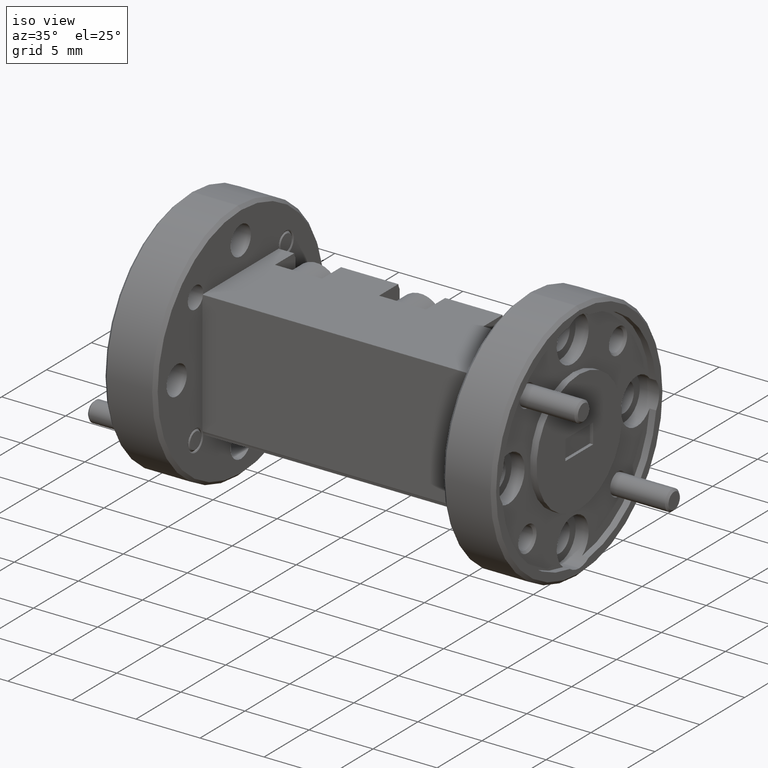
[diagram: clean part render]
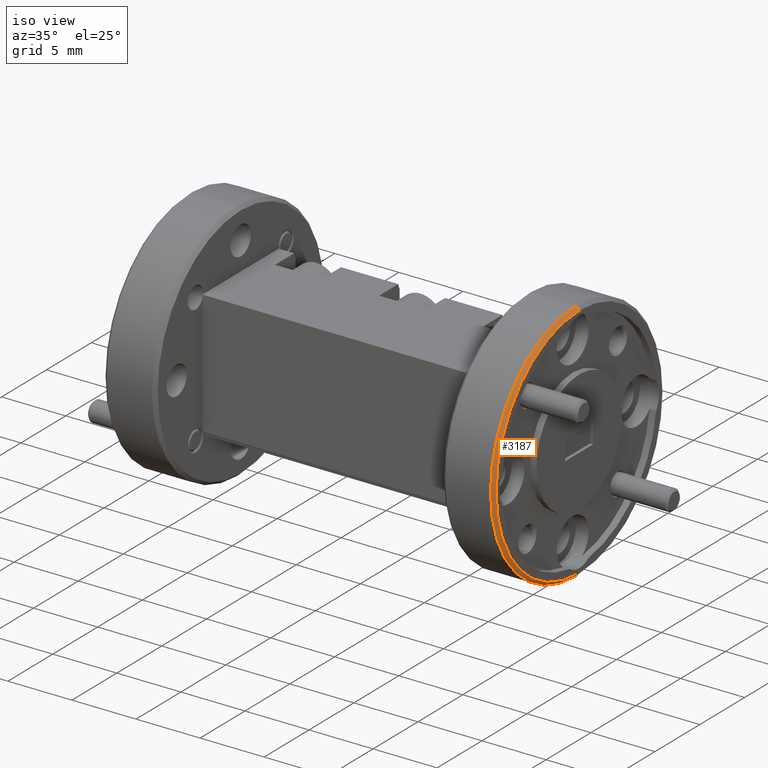
[diagram: same view with one face highlighted and labeled with its STEP entity id]
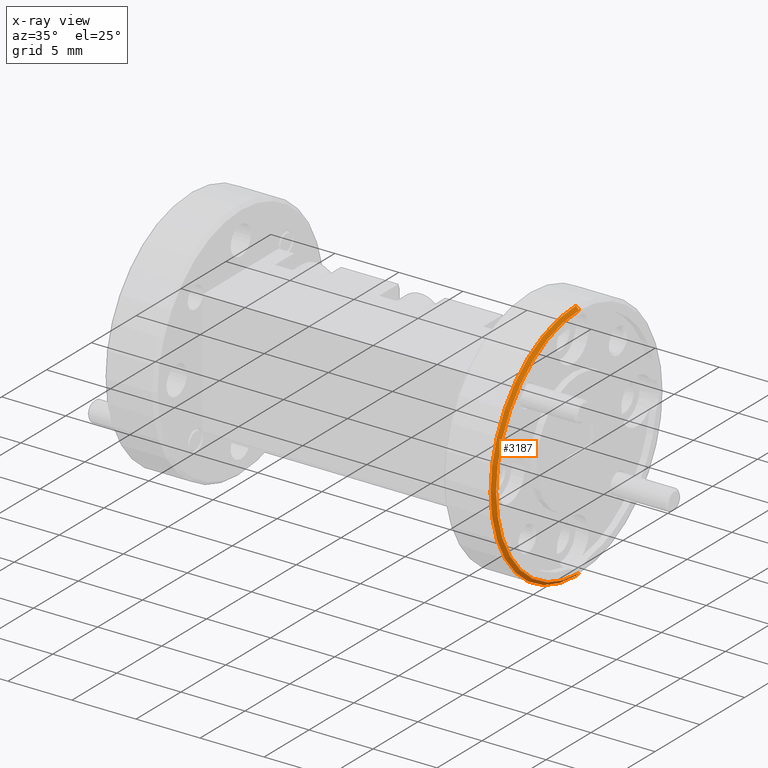
[diagram: x-ray of the same camera — body ghosted, the highlighted face saturated]
A machine part, iso view. The second image highlights one B-rep face of the part: STEP entity #3187.
The next image is the same camera in x-ray: the body ghosted, the highlighted face saturated — about 0% of this face is hidden behind the body in this view.
In plain terms, the highlighted conical surface has half-angle 45 deg.
Its self-contained STEP definition (entity closure, byte-faithful):
#164 = ORIENTED_EDGE ( 'NONE', *, *, #833, .T. ) ;
#495 = EDGE_LOOP ( 'NONE', ( #2180, #164, #534, #8403 ) ) ;
#534 = ORIENTED_EDGE ( 'NONE', *, *, #4889, .F. ) ;
#604 = LINE ( 'NONE', #9907, #5432 ) ;
#833 = EDGE_CURVE ( 'NONE', #844, #7906, #604, .T. ) ;
#844 = VERTEX_POINT ( 'NONE', #9098 ) ;
#1482 = CIRCLE ( 'NONE', #7418, 0.3749999999999999445 ) ;
#1965 = CARTESIAN_POINT ( 'NONE',  ( 1.052451282502860019, 0.6950558021064788816, 0.8719535146820031057 ) ) ;
#2034 = EDGE_CURVE ( 'NONE', #10984, #10864, #2530, .T. ) ;
#2180 = ORIENTED_EDGE ( 'NONE', *, *, #3022, .F. ) ;
#2530 = LINE ( 'NONE', #9032, #11168 ) ;
#2911 = CARTESIAN_POINT ( 'NONE',  ( 1.042451282502860455, 0.6950558021064788816, 0.4969535146820032723 ) ) ;
#3022 = EDGE_CURVE ( 'NONE', #844, #10984, #7691, .T. ) ;
#3187 = ADVANCED_FACE ( 'NONE', ( #8670 ), #4057, .T. ) ;
#4057 = CONICAL_SURFACE ( 'NONE', #4258, 0.3749999999999999445, 0.7853981633974447263 ) ;
#4210 = CARTESIAN_POINT ( 'NONE',  ( 1.052451282502860019, 0.6950558021064788816, 0.5069535146820026705 ) ) ;
#4258 = AXIS2_PLACEMENT_3D ( 'NONE', #9994, #11922, #5233 ) ;
#4391 = DIRECTION ( 'NONE',  ( -0.7071067811865499042, -1.200316422774041849E-16, 0.7071067811865450192 ) ) ;
#4889 = EDGE_CURVE ( 'NONE', #10864, #7906, #1482, .T. ) ;
#5233 = DIRECTION ( 'NONE',  ( 0.000000000000000000, 0.000000000000000000, -1.000000000000000000 ) ) ;
#5432 = VECTOR ( 'NONE', #4391, 39.37007874015748854 ) ;
#5770 = DIRECTION ( 'NONE',  ( 0.000000000000000000, 0.000000000000000000, -1.000000000000000000 ) ) ;
#6255 = DIRECTION ( 'NONE',  ( -0.7071067811865499042, 3.470014170709585679E-17, -0.7071067811865450192 ) ) ;
#6487 = DIRECTION ( 'NONE',  ( 1.000000000000000000, -2.757206031840760911E-17, -5.551115123125781470E-17 ) ) ;
#6535 = DIRECTION ( 'NONE',  ( 0.000000000000000000, 0.000000000000000000, -1.000000000000000000 ) ) ;
#7418 = AXIS2_PLACEMENT_3D ( 'NONE', #7462, #9367, #6535 ) ;
#7462 = CARTESIAN_POINT ( 'NONE',  ( 1.042451282502860455, 0.6950558021064788816, 0.8719535146820031057 ) ) ;
#7691 = CIRCLE ( 'NONE', #10223, 0.3650000000000005462 ) ;
#7906 = VERTEX_POINT ( 'NONE', #11484 ) ;
#8403 = ORIENTED_EDGE ( 'NONE', *, *, #2034, .F. ) ;
#8670 = FACE_OUTER_BOUND ( 'NONE', #495, .T. ) ;
#9032 = CARTESIAN_POINT ( 'NONE',  ( 1.042451282502860455, 0.6950558021064788816, 0.4969535146820031613 ) ) ;
#9098 = CARTESIAN_POINT ( 'NONE',  ( 1.052451282502860019, 0.6950558021064788816, 1.236953514682003430 ) ) ;
#9367 = DIRECTION ( 'NONE',  ( -1.000000000000000000, 8.938572552786690926E-19, -1.232595164407830672E-32 ) ) ;
#9907 = CARTESIAN_POINT ( 'NONE',  ( 1.042451282502860455, 0.6950558021064788816, 1.246953514682002995 ) ) ;
#9994 = CARTESIAN_POINT ( 'NONE',  ( 1.042451282502860455, 0.6950558021064788816, 0.8719535146820031057 ) ) ;
#10223 = AXIS2_PLACEMENT_3D ( 'NONE', #1965, #6487, #5770 ) ;
#10864 = VERTEX_POINT ( 'NONE', #2911 ) ;
#10984 = VERTEX_POINT ( 'NONE', #4210 ) ;
#11168 = VECTOR ( 'NONE', #6255, 39.37007874015748854 ) ;
#11484 = CARTESIAN_POINT ( 'NONE',  ( 1.042451282502860455, 0.6950558021064788816, 1.246953514682002995 ) ) ;
#11922 = DIRECTION ( 'NONE',  ( -1.000000000000000000, 8.938572552786690926E-19, -1.232595164407830672E-32 ) ) ;